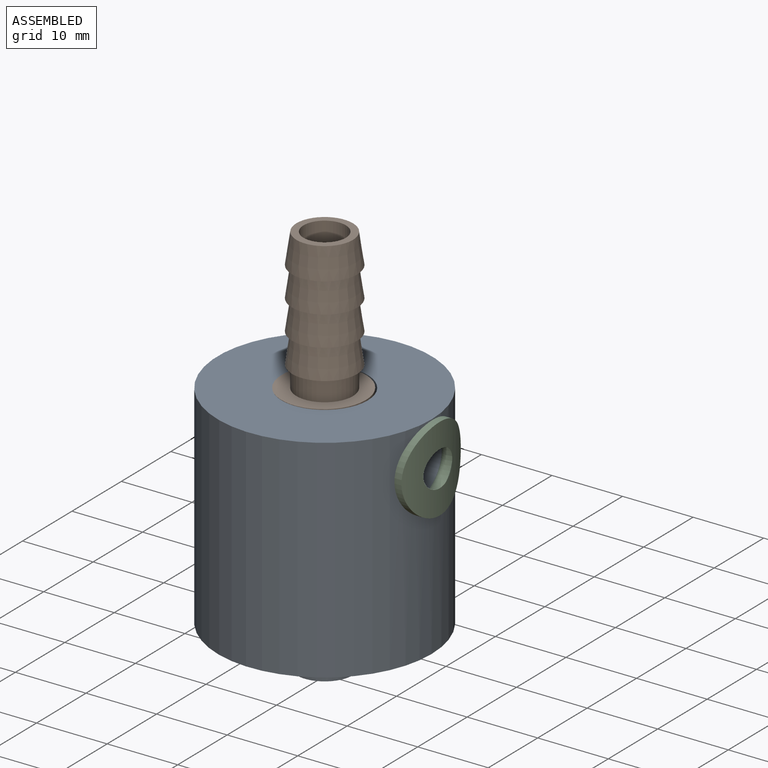
[diagram: assembled view]
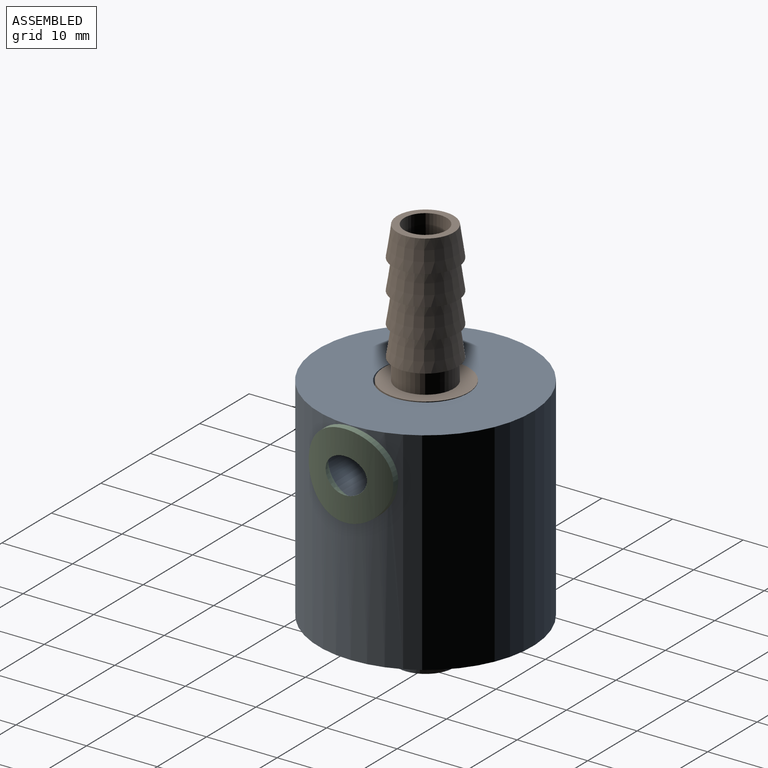
[diagram: assembled view, second angle]
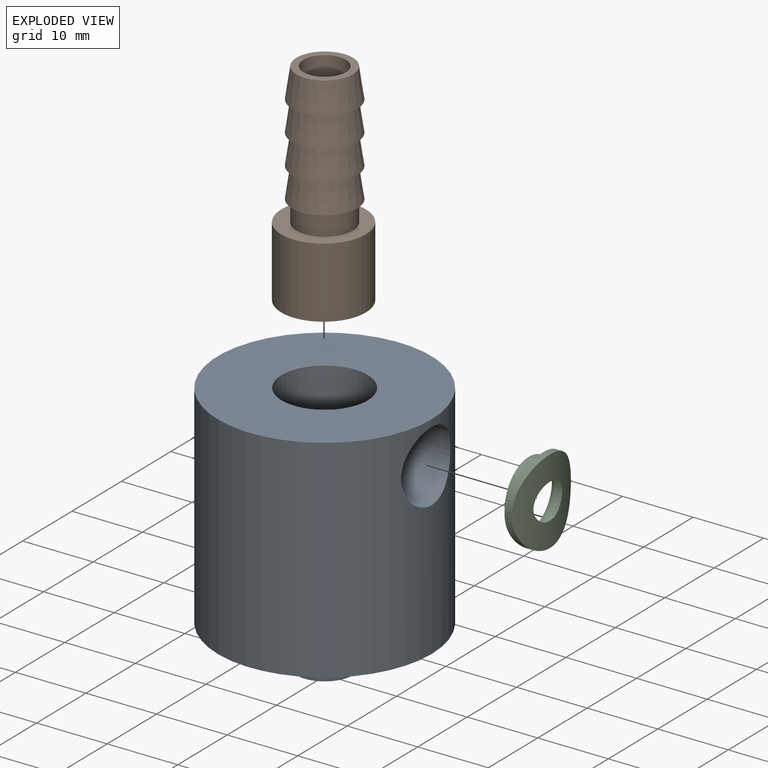
[diagram: exploded view]
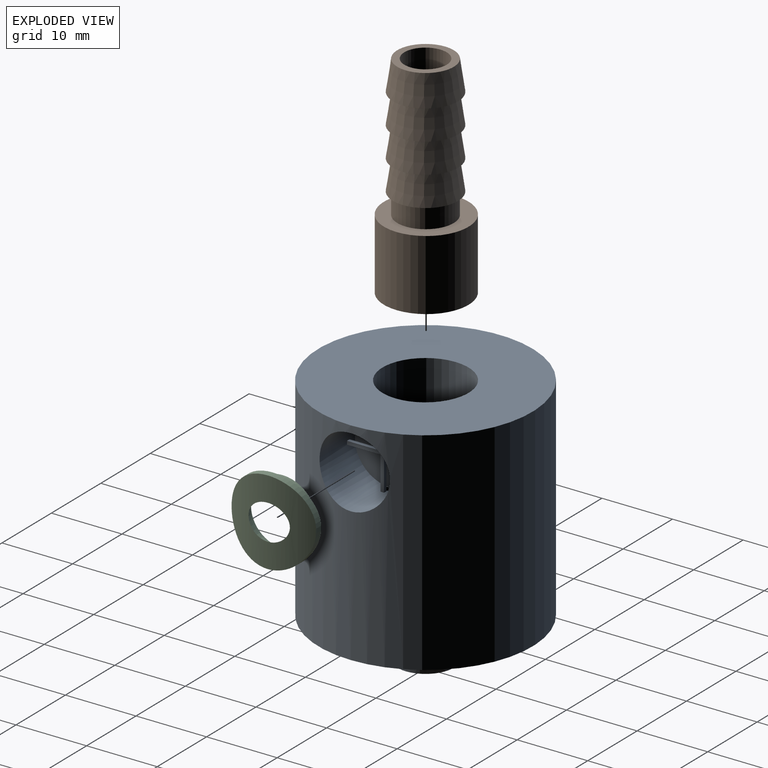
[diagram: exploded view, second angle]
ASSEMBLY  parts=3 mates=2
PART A: 82 faces, bbox 30.3x30.3x35.8 mm
  f0: plane 6x6mm, normal (0,0,-1), area 12.4mm2, adj f37,f71
  f1: plane 19.5x19.5mm, normal (0,0,-1), area 247.6mm2, adj f36,f42,f70
  f2: cylinder r=5mm len=10mm, axis (-1,0,0), area 236.3mm2, adj f3,f41,f42,f72,f73,f74,f75,f76
  f3: cylinder r=15.15mm len=30.3mm, axis (0,0,1), area 2780.9mm2, adj f2,f22,f23
  f4: plane 1.51x0.95mm, normal (-0.24,0.41,0.88), area 0.7mm2, adj f5,f14,f15
  f5: bspline ~1.75x1.25mm, area 0.5mm2, adj f4,f9,f13,f16
  f6: bspline ~1.77x1.26mm, area 0.5mm2, adj f7,f8,f11,f16
  f7: plane 1.51x0.95mm, normal (-0.18,0.43,-0.89), area 0.7mm2, adj f6,f10,f17
  f8: bspline ~0.23x0.18mm, area 0mm2, adj f6,f16,f17,f18
  f9: bspline ~0.23x0.17mm, area 0mm2, adj f5,f15,f16,f19
  f10: bspline ~1.55x0.4mm, area 0.4mm2, adj f7,f11,f20,f34
  f11: bspline ~0.48x0.39mm, area 0.1mm2, adj f6,f10,f12,f34
  f12: cylinder r=0.25mm len=1mm, axis (0,0,-1), area 0.2mm2, adj f11,f13,f16,f34
  f13: bspline ~0.46x0.41mm, area 0.1mm2, adj f5,f12,f14,f34
  f14: bspline ~1.56x0.52mm, area 0.4mm2, adj f4,f13,f21,f34
  f15: cylinder r=1.19mm len=0.73mm, axis (0.09,-0.89,0.44), area 0.1mm2, adj f4,f9,f21,f30
  f16: cylinder r=5mm len=2.26mm, axis (0,0,-1), area 2.2mm2, adj f5,f6,f8,f9,f12,f18,f19,f25
  f17: cylinder r=1.25mm len=0.73mm, axis (-0.08,0.89,0.45), area 0.1mm2, adj f7,f8,f20,f29
  f18: bspline ~0.49x0.27mm, area 0.1mm2, adj f8,f16,f28,f29
  f19: bspline ~0.47x0.27mm, area 0.1mm2, adj f9,f16,f27,f30
  f20: bspline ~0.23x0.17mm, area 0mm2, adj f10,f17,f24,f34
  f21: bspline ~0.24x0.18mm, area 0mm2, adj f14,f15,f26,f34
  f22: plane 30.3x30.3mm, normal (0,0,-1), area 127.1mm2, adj f3,f34
  f23: plane 30.3x30.3mm, normal (0,0,1), area 604.2mm2, adj f3,f40
  f24: bspline ~27.54x27.53mm, area 38.2mm2, adj f20,f29,f34,f35,f59
  f25: cylinder r=12.75mm len=25.5mm, axis (0,0,-1), area 89.5mm2, adj f16,f27,f28,f47
  f26: bspline ~27.53x27.53mm, area 38.2mm2, adj f21,f30,f34,f35,f60
  f27: bspline ~25.86x25.81mm, area 35.4mm2, adj f19,f25,f30,f57
  f28: bspline ~25.86x25.81mm, area 35.1mm2, adj f18,f25,f29,f56
  f29: bspline ~28.68x28.05mm, area 107.8mm2, adj f17,f18,f24,f28,f45,f56
  f30: bspline ~28.68x28.05mm, area 107.8mm2, adj f15,f19,f26,f27,f46,f57
  f31: plane 21.3x21.3mm, normal (0,0,-1), area 57.7mm2, adj f32,f36
  f32: cylinder r=10.65mm len=21.3mm, axis (0,0,1), area 87mm2, adj f31,f33
  f33: plane 27.5x27.5mm, normal (0,0,-1), area 237.6mm2, adj f32,f35
  f34: cylinder r=13.75mm len=27.5mm, axis (0,0,1), area 526.9mm2, adj f10,f11,f12,f13,f14,f20,f21,f22
  f35: cylinder r=13.75mm len=27.5mm, axis (0,0,1), area 380.4mm2, adj f24,f26,f33,f34,f50,f51,f54,f55
  f36: cylinder r=9.75mm len=19.5mm, axis (0,0,-1), area 79.6mm2, adj f1,f31
  f37: cylinder r=2.25mm len=4.5mm, axis (0,0,-1), area 16.8mm2, adj f0,f38
  f38: cone r=4.75mm half-angle=28.7deg, axis (0,0,1), area 114.4mm2, adj f37,f39
  f39: plane 12.2x12.2mm, normal (0,0,1), area 46mm2, adj f38,f40
  f40: cylinder r=6.1mm len=12.2mm, axis (0,0,-1), area 383.3mm2, adj f23,f39
  f41: plane 10x10mm, normal (1,0,0), area 78.5mm2, adj f2
  f42: cylinder r=0.5mm len=4.75mm, axis (0,0,1), area 14.9mm2, adj f1,f2
  f43: plane 1.49x1.25mm, normal (0.26,-0.4,-0.88), area 0.7mm2, adj f45,f48,f55
  f44: plane 1.49x1.25mm, normal (0.3,-0.35,0.89), area 0.7mm2, adj f46,f49,f58
  f45: cylinder r=1.19mm len=0.69mm, axis (-0.77,0.47,-0.44), area 0.1mm2, adj f29,f43,f52,f59
  f46: cylinder r=1.25mm len=0.69mm, axis (0.77,-0.46,-0.45), area 0.1mm2, adj f30,f44,f53,f60
  f47: cylinder r=5mm len=2.22mm, axis (0,0,1), area 2.2mm2, adj f25,f48,f49,f50,f52,f53,f56,f57
  f48: bspline ~1.84x1.12mm, area 0.5mm2, adj f43,f47,f51,f52
  f49: bspline ~1.83x1.12mm, area 0.5mm2, adj f44,f47,f53,f54
  f50: cylinder r=0.25mm len=1.01mm, axis (0,0,-1), area 0.2mm2, adj f35,f47,f51,f54
  f51: bspline ~0.41x0.4mm, area 0.1mm2, adj f35,f48,f50,f55
  f52: bspline ~0.23x0.18mm, area 0mm2, adj f45,f47,f48,f56
  f53: bspline ~0.23x0.2mm, area 0mm2, adj f46,f47,f49,f57
  f54: bspline ~0.41x0.39mm, area 0.1mm2, adj f35,f49,f50,f58
  f55: bspline ~1.32x1.04mm, area 0.4mm2, adj f35,f43,f51,f59
  f56: bspline ~0.41x0.41mm, area 0.1mm2, adj f28,f29,f47,f52
  f57: bspline ~0.43x0.41mm, area 0.1mm2, adj f27,f30,f47,f53
  f58: bspline ~1.32x1.03mm, area 0.4mm2, adj f35,f44,f54,f60
  f59: bspline ~0.24x0.22mm, area 0mm2, adj f24,f35,f45,f55
  f60: bspline ~0.23x0.21mm, area 0mm2, adj f26,f35,f46,f58
  f61: plane 9.25x9.25mm, normal (0,0,1), area 16.9mm2, adj f62,f70
  f62: cone r=4.62mm half-angle=8.4deg, axis (0,0,1), area 116.4mm2, adj f61,f63
  f63: plane 9.25x9.25mm, normal (0,0,1), area 16.9mm2, adj f62,f64
  f64: cone r=4.62mm half-angle=8.4deg, axis (0,0,1), area 116.4mm2, adj f63,f65
  f65: plane 9.25x9.25mm, normal (0,0,1), area 16.9mm2, adj f64,f66
  f66: cone r=4.62mm half-angle=8.4deg, axis (0,0,1), area 116.4mm2, adj f65,f67
  f67: plane 9.25x9.25mm, normal (0,0,1), area 16.9mm2, adj f66,f68
  f68: cone r=4mm half-angle=8.4deg, axis (0,0,1), area 116.4mm2, adj f67,f69
  f69: plane 8x8mm, normal (0,0,-1), area 22mm2, adj f68,f71
  f70: cylinder r=4mm len=8mm, axis (0,0,1), area 75.4mm2, adj f1,f61
  f71: cylinder r=3mm len=20mm, axis (0,0,1), area 377mm2, adj f0,f69
  f72: plane 4.74x0.5mm, normal (0,0,1), area 2.4mm2, adj f2,f79,f80,f81
  f73: plane 4.74x0.5mm, normal (0,0,-1), area 2.4mm2, adj f2,f74,f80,f81
  f74: plane 4.74x0.5mm, normal (0,-1,0), area 2.4mm2, adj f2,f73,f80,f81
  f75: plane 4.74x0.5mm, normal (0,1,0), area 2.4mm2, adj f2,f76,f80,f81
  f76: plane 4.74x0.5mm, normal (0,0,-1), area 2.4mm2, adj f2,f75,f80,f81
  f77: plane 4.74x0.5mm, normal (0,0,1), area 2.4mm2, adj f2,f78,f80,f81
  f78: plane 4.74x0.5mm, normal (0,1,0), area 2.4mm2, adj f2,f77,f80,f81
  f79: plane 4.74x0.5mm, normal (0,-1,0), area 2.4mm2, adj f2,f72,f80,f81
  f80: plane 10x10mm, normal (1,0,0), area 9.7mm2, adj f2,f72,f73,f74,f75,f76,f77,f78
  f81: plane 10x10mm, normal (-1,0,0), area 9.7mm2, adj f2,f72,f73,f74,f75,f76,f77,f78
PART B: 21 faces, bbox 12x12x30 mm
  f0: plane 12x12mm, normal (0,0,1), area 62.8mm2, adj f10,f20
  f1: plane 9x1.69mm, normal (0,0,-1), area 15.1mm2, adj f2,f3,f4
  f2: plane 8.84x1.5mm, normal (0,-1,0), area 13.3mm2, adj f1,f4,f5,f6
  f3: plane 8.84x1.5mm, normal (0,1,0), area 13.3mm2, adj f1,f4,f6,f7
  f4: cylinder r=4.5mm len=9mm, axis (0,0,-1), area 249.4mm2, adj f1,f2,f3,f5,f7,f9
  f5: plane 8.84x3.65mm, normal (0,0,-1), area 15.1mm2, adj f2,f4,f8
  f6: plane 6x1.69mm, normal (0,0,1), area 10mm2, adj f2,f3,f8
  f7: plane 8.84x3.65mm, normal (0,0,-1), area 15.1mm2, adj f3,f4,f8
  f8: cylinder r=3mm len=21mm, axis (0,0,-1), area 395.8mm2, adj f5,f6,f7,f19
  f9: plane 12x12mm, normal (0,0,-1), area 49.5mm2, adj f4,f10
  f10: cylinder r=6mm len=12mm, axis (0,0,1), area 377mm2, adj f0,f9
  f11: plane 9.25x9.25mm, normal (0,0,-1), area 16.9mm2, adj f12,f20
  f12: cone r=4.62mm half-angle=8.4deg, axis (0,0,-1), area 116.4mm2, adj f11,f13
  f13: plane 9.25x9.25mm, normal (0,0,-1), area 16.9mm2, adj f12,f14
  f14: cone r=4.62mm half-angle=8.4deg, axis (0,0,-1), area 116.4mm2, adj f13,f15
  f15: plane 9.25x9.25mm, normal (0,0,-1), area 16.9mm2, adj f14,f16
  f16: cone r=4.62mm half-angle=8.4deg, axis (0,0,-1), area 116.4mm2, adj f15,f17
  f17: plane 9.25x9.25mm, normal (0,0,-1), area 16.9mm2, adj f16,f18
  f18: cone r=4mm half-angle=8.4deg, axis (0,0,-1), area 116.4mm2, adj f17,f19
  f19: plane 8x8mm, normal (0,0,1), area 22mm2, adj f8,f18
  f20: cylinder r=4mm len=8mm, axis (0,0,-1), area 75.4mm2, adj f0,f11
PART C: 7 faces, bbox 3x12x12 mm
  f0: cylinder r=4.9mm len=9.8mm, axis (1,0,0), area 49.1mm2, adj f2,f6
  f1: cylinder r=15.15mm len=12mm, axis (0,0,1), area 92.5mm2, adj f3,f5
  f2: cylinder r=15.15mm len=12mm, axis (0,0,1), area 39mm2, adj f0,f3
  f3: cylinder r=6mm len=12mm, axis (-1,0,0), area 37.7mm2, adj f1,f2
  f4: cylinder r=4mm len=8mm, axis (1,0,0), area 25.3mm2, adj f5,f6
  f5: cone r=4mm half-angle=56.3deg, axis (-1,0,0), area 32.9mm2, adj f1,f4
  f6: torus R=5mm, axis (-1,0,0), area 39.9mm2, adj f0,f4
PLACE A t=(-0.13,-0.07,2.06)mm
PLACE B t=(-0.13,-0.07,17.81)mm
PLACE C t=(0.03,-0.07,11.81)mm
MATE ball B.f4 <-> A.f3  axis (0,0,-1) through (-0.13,-0.07,7.81)mm
MATE ball C.f3 <-> A.f2  axis (-1,0,0) through (15.06,-0.07,11.81)mm
